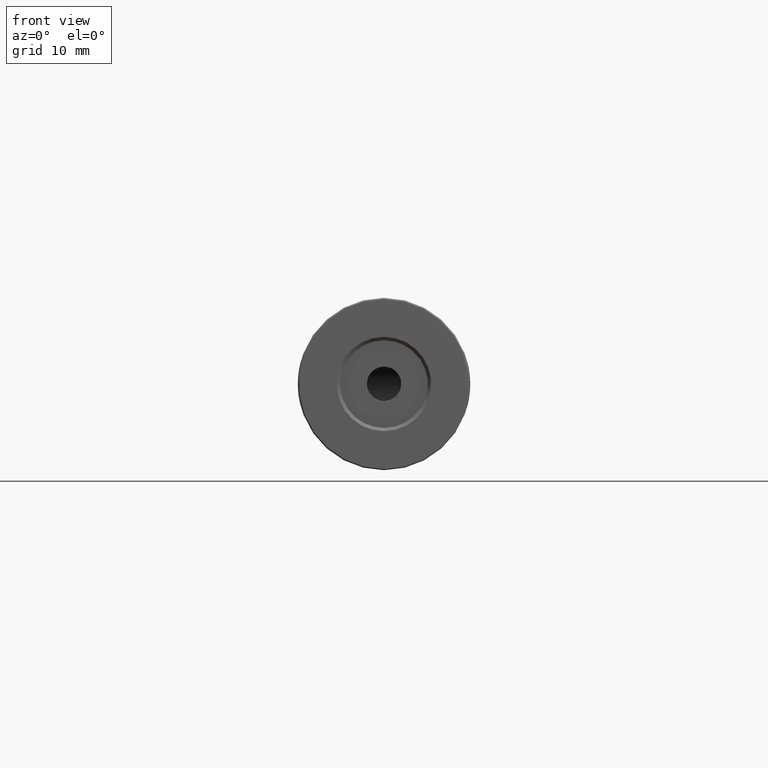
[diagram: clean part render]
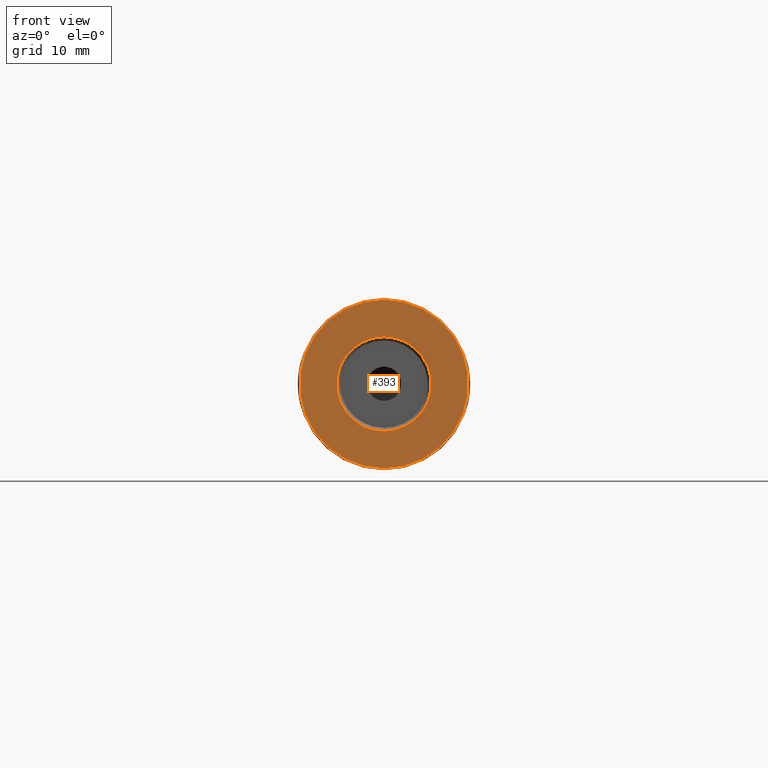
[diagram: same view with one face highlighted and labeled with its STEP entity id]
A machine part, front view. The second image highlights one B-rep face of the part: STEP entity #393.
In plain terms, the highlighted planar face has unit normal (0, 1, 0).
Its self-contained STEP definition (entity closure, byte-faithful):
#165 = DIRECTION ( 'NONE',  ( 0.0000000000000000000, 1.000000000000000000, 0.0000000000000000000 ) ) ;
#194 = CARTESIAN_POINT ( 'NONE',  ( -22.50520183104453409, -48.60174781523060972, 50.00000000000000000 ) ) ;
#393 = ADVANCED_FACE ( 'NONE', ( #2286, #2840 ), #3083, .F. ) ;
#439 = CARTESIAN_POINT ( 'NONE',  ( -22.50520183104453409, -48.60174781523060972, 37.75000000000000711 ) ) ;
#512 = ORIENTED_EDGE ( 'NONE', *, *, #2057, .T. ) ;
#518 = EDGE_CURVE ( 'NONE', #1790, #3189, #3333, .T. ) ;
#594 = CIRCLE ( 'NONE', #3273, 6.849999999999980993 ) ;
#690 = CARTESIAN_POINT ( 'NONE',  ( -22.50520183104453409, -48.60174781523060972, 50.00000000000000000 ) ) ;
#692 = CARTESIAN_POINT ( 'NONE',  ( -22.50520183104453409, -48.60174781523060972, 43.15000000000001990 ) ) ;
#832 = ORIENTED_EDGE ( 'NONE', *, *, #1086, .T. ) ;
#955 = CARTESIAN_POINT ( 'NONE',  ( -22.50520183104453409, -48.60174781523060972, 50.00000000000000000 ) ) ;
#967 = DIRECTION ( 'NONE',  ( -0.0000000000000000000, -1.000000000000000000, -0.0000000000000000000 ) ) ;
#981 = CARTESIAN_POINT ( 'NONE',  ( -22.50520183104453409, -48.60174781523060972, 56.84999999999998721 ) ) ;
#1072 = VERTEX_POINT ( 'NONE', #981 ) ;
#1086 = EDGE_CURVE ( 'NONE', #3455, #1072, #594, .T. ) ;
#1095 = CIRCLE ( 'NONE', #2706, 12.24999999999999645 ) ;
#1150 = CIRCLE ( 'NONE', #3442, 6.849999999999980993 ) ;
#1317 = AXIS2_PLACEMENT_3D ( 'NONE', #955, #2020, #3330 ) ;
#1467 = EDGE_CURVE ( 'NONE', #1072, #3455, #1150, .T. ) ;
#1750 = DIRECTION ( 'NONE',  ( 0.0000000000000000000, 0.0000000000000000000, 1.000000000000000000 ) ) ;
#1782 = DIRECTION ( 'NONE',  ( 0.0000000000000000000, 1.000000000000000000, 0.0000000000000000000 ) ) ;
#1790 = VERTEX_POINT ( 'NONE', #2394 ) ;
#2020 = DIRECTION ( 'NONE',  ( -0.0000000000000000000, -1.000000000000000000, -0.0000000000000000000 ) ) ;
#2057 = EDGE_CURVE ( 'NONE', #3189, #1790, #1095, .T. ) ;
#2149 = CARTESIAN_POINT ( 'NONE',  ( -22.50520183104453409, -48.60174781523060972, 50.00000000000000000 ) ) ;
#2237 = ORIENTED_EDGE ( 'NONE', *, *, #518, .T. ) ;
#2286 = FACE_OUTER_BOUND ( 'NONE', #2460, .T. ) ;
#2394 = CARTESIAN_POINT ( 'NONE',  ( -22.50520183104453409, -48.60174781523060972, 62.25000000000000000 ) ) ;
#2408 = DIRECTION ( 'NONE',  ( 0.0000000000000000000, 0.0000000000000000000, 1.000000000000000000 ) ) ;
#2460 = EDGE_LOOP ( 'NONE', ( #2237, #512 ) ) ;
#2559 = CARTESIAN_POINT ( 'NONE',  ( -22.50520183104453409, -48.60174781523060972, 50.00000000000000000 ) ) ;
#2706 = AXIS2_PLACEMENT_3D ( 'NONE', #690, #967, #3409 ) ;
#2840 = FACE_BOUND ( 'NONE', #3436, .T. ) ;
#2938 = AXIS2_PLACEMENT_3D ( 'NONE', #2559, #3349, #3395 ) ;
#2945 = ORIENTED_EDGE ( 'NONE', *, *, #1467, .T. ) ;
#3083 = PLANE ( 'NONE',  #2938 ) ;
#3189 = VERTEX_POINT ( 'NONE', #439 ) ;
#3273 = AXIS2_PLACEMENT_3D ( 'NONE', #2149, #165, #1750 ) ;
#3330 = DIRECTION ( 'NONE',  ( 0.0000000000000000000, 0.0000000000000000000, 1.000000000000000000 ) ) ;
#3333 = CIRCLE ( 'NONE', #1317, 12.24999999999999645 ) ;
#3349 = DIRECTION ( 'NONE',  ( 0.0000000000000000000, 1.000000000000000000, 0.0000000000000000000 ) ) ;
#3395 = DIRECTION ( 'NONE',  ( 0.0000000000000000000, -0.0000000000000000000, 1.000000000000000000 ) ) ;
#3409 = DIRECTION ( 'NONE',  ( 0.0000000000000000000, 0.0000000000000000000, 1.000000000000000000 ) ) ;
#3436 = EDGE_LOOP ( 'NONE', ( #832, #2945 ) ) ;
#3442 = AXIS2_PLACEMENT_3D ( 'NONE', #194, #1782, #2408 ) ;
#3455 = VERTEX_POINT ( 'NONE', #692 ) ;